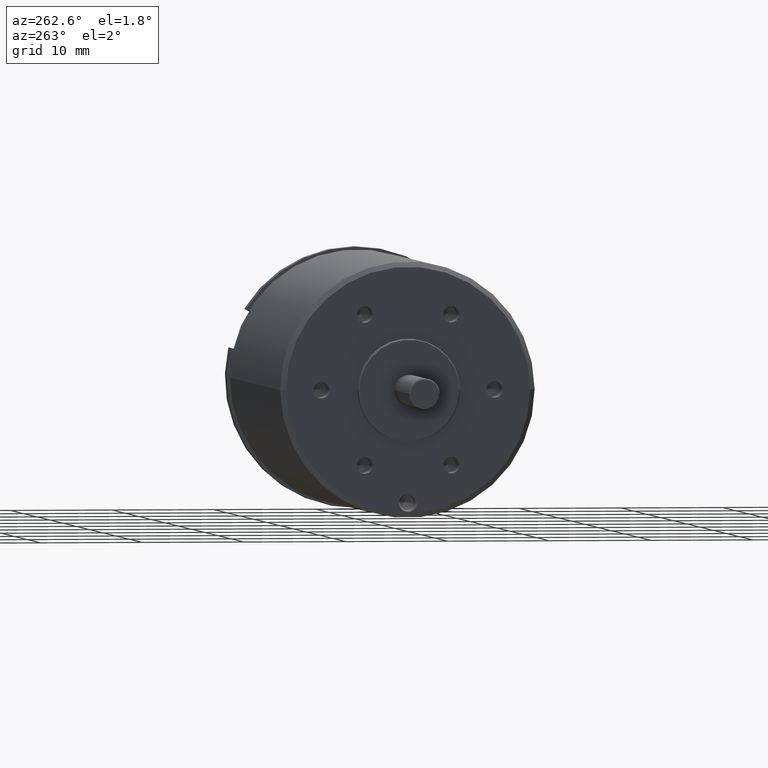
[diagram: clean part render]
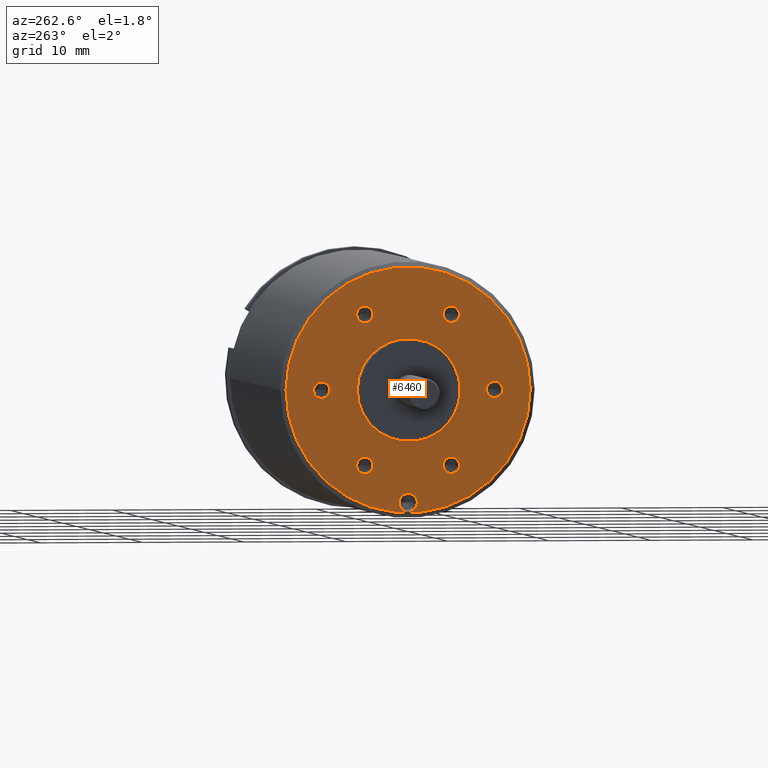
[diagram: same view with one face highlighted and labeled with its STEP entity id]
A machine part, auxiliary view. The second image highlights one B-rep face of the part: STEP entity #6460.
In plain terms, the highlighted planar face has unit normal (-1, 0, 0).
Its self-contained STEP definition (entity closure, byte-faithful):
#2199=CARTESIAN_POINT('',(0.E0,0.E0,0.E0));
#2200=DIRECTION('',(1.E0,0.E0,0.E0));
#2201=DIRECTION('',(0.E0,1.E0,0.E0));
#2202=AXIS2_PLACEMENT_3D('',#2199,#2200,#2201);
#2204=CARTESIAN_POINT('',(0.E0,0.E0,0.E0));
#2205=DIRECTION('',(-1.E0,0.E0,0.E0));
#2206=DIRECTION('',(0.E0,1.E0,0.E0));
#2207=AXIS2_PLACEMENT_3D('',#2204,#2205,#2206);
#2209=CARTESIAN_POINT('',(0.E0,0.E0,0.E0));
#2210=DIRECTION('',(1.E0,0.E0,0.E0));
#2211=DIRECTION('',(0.E0,-1.E0,0.E0));
#2212=AXIS2_PLACEMENT_3D('',#2209,#2210,#2211);
#2214=CARTESIAN_POINT('',(0.E0,0.E0,0.E0));
#2215=DIRECTION('',(1.E0,0.E0,0.E0));
#2216=DIRECTION('',(0.E0,1.E0,0.E0));
#2217=AXIS2_PLACEMENT_3D('',#2214,#2215,#2216);
#2219=CARTESIAN_POINT('',(0.E0,-8.5E0,0.E0));
#2220=DIRECTION('',(-1.E0,0.E0,0.E0));
#2221=DIRECTION('',(0.E0,1.E0,0.E0));
#2222=AXIS2_PLACEMENT_3D('',#2219,#2220,#2221);
#2224=CARTESIAN_POINT('',(0.E0,-8.5E0,0.E0));
#2225=DIRECTION('',(-1.E0,0.E0,0.E0));
#2226=DIRECTION('',(0.E0,-1.E0,0.E0));
#2227=AXIS2_PLACEMENT_3D('',#2224,#2225,#2226);
#2229=CARTESIAN_POINT('',(0.E0,-4.25E0,-7.361215932168E0));
#2230=DIRECTION('',(-1.E0,0.E0,0.E0));
#2231=DIRECTION('',(0.E0,5.E-1,8.660254037844E-1));
#2232=AXIS2_PLACEMENT_3D('',#2229,#2230,#2231);
#2234=CARTESIAN_POINT('',(0.E0,-4.25E0,-7.361215932168E0));
#2235=DIRECTION('',(-1.E0,0.E0,0.E0));
#2236=DIRECTION('',(0.E0,-5.E-1,-8.660254037844E-1));
#2237=AXIS2_PLACEMENT_3D('',#2234,#2235,#2236);
#2239=CARTESIAN_POINT('',(0.E0,4.25E0,-7.361215932168E0));
#2240=DIRECTION('',(-1.E0,0.E0,0.E0));
#2241=DIRECTION('',(0.E0,-5.E-1,8.660254037844E-1));
#2242=AXIS2_PLACEMENT_3D('',#2239,#2240,#2241);
#2244=CARTESIAN_POINT('',(0.E0,4.25E0,-7.361215932168E0));
#2245=DIRECTION('',(-1.E0,0.E0,0.E0));
#2246=DIRECTION('',(0.E0,5.E-1,-8.660254037844E-1));
#2247=AXIS2_PLACEMENT_3D('',#2244,#2245,#2246);
#2249=CARTESIAN_POINT('',(0.E0,8.5E0,0.E0));
#2250=DIRECTION('',(-1.E0,0.E0,0.E0));
#2251=DIRECTION('',(0.E0,-1.E0,0.E0));
#2252=AXIS2_PLACEMENT_3D('',#2249,#2250,#2251);
#2254=CARTESIAN_POINT('',(0.E0,8.5E0,0.E0));
#2255=DIRECTION('',(-1.E0,0.E0,0.E0));
#2256=DIRECTION('',(0.E0,1.E0,0.E0));
#2257=AXIS2_PLACEMENT_3D('',#2254,#2255,#2256);
#2259=CARTESIAN_POINT('',(0.E0,4.25E0,7.361215932168E0));
#2260=DIRECTION('',(-1.E0,0.E0,0.E0));
#2261=DIRECTION('',(0.E0,-5.E-1,-8.660254037844E-1));
#2262=AXIS2_PLACEMENT_3D('',#2259,#2260,#2261);
#2264=CARTESIAN_POINT('',(0.E0,4.25E0,7.361215932168E0));
#2265=DIRECTION('',(-1.E0,0.E0,0.E0));
#2266=DIRECTION('',(0.E0,5.E-1,8.660254037844E-1));
#2267=AXIS2_PLACEMENT_3D('',#2264,#2265,#2266);
#2269=CARTESIAN_POINT('',(0.E0,-4.25E0,7.361215932168E0));
#2270=DIRECTION('',(-1.E0,0.E0,0.E0));
#2271=DIRECTION('',(0.E0,5.E-1,-8.660254037844E-1));
#2272=AXIS2_PLACEMENT_3D('',#2269,#2270,#2271);
#2274=CARTESIAN_POINT('',(0.E0,-4.25E0,7.361215932168E0));
#2275=DIRECTION('',(-1.E0,0.E0,0.E0));
#2276=DIRECTION('',(0.E0,-5.E-1,8.660254037844E-1));
#2277=AXIS2_PLACEMENT_3D('',#2274,#2275,#2276);
#2279=CARTESIAN_POINT('',(0.E0,0.E0,-1.1E1));
#2280=DIRECTION('',(-1.E0,0.E0,0.E0));
#2281=DIRECTION('',(0.E0,1.E0,0.E0));
#2282=AXIS2_PLACEMENT_3D('',#2279,#2280,#2281);
#2284=CARTESIAN_POINT('',(0.E0,0.E0,-1.1E1));
#2285=DIRECTION('',(-1.E0,0.E0,0.E0));
#2286=DIRECTION('',(0.E0,-1.E0,0.E0));
#2287=AXIS2_PLACEMENT_3D('',#2284,#2285,#2286);
#3096=CARTESIAN_POINT('',(0.E0,1.2E1,0.E0));
#3098=VERTEX_POINT('',#3096);
#3100=CARTESIAN_POINT('',(0.E0,-1.2E1,0.E0));
#3102=VERTEX_POINT('',#3100);
#3217=CARTESIAN_POINT('',(0.E0,-5.E0,0.E0));
#3218=CARTESIAN_POINT('',(0.E0,5.E0,0.E0));
#3219=VERTEX_POINT('',#3217);
#3220=VERTEX_POINT('',#3218);
#3243=CARTESIAN_POINT('',(0.E0,-7.7E0,0.E0));
#3244=CARTESIAN_POINT('',(0.E0,-9.3E0,0.E0));
#3245=VERTEX_POINT('',#3243);
#3246=VERTEX_POINT('',#3244);
#3253=CARTESIAN_POINT('',(0.E0,-3.85E0,-6.668395609140E0));
#3254=CARTESIAN_POINT('',(0.E0,-4.65E0,-8.054036255195E0));
#3255=VERTEX_POINT('',#3253);
#3256=VERTEX_POINT('',#3254);
#3263=CARTESIAN_POINT('',(0.E0,3.85E0,-6.668395609140E0));
#3264=CARTESIAN_POINT('',(0.E0,4.65E0,-8.054036255195E0));
#3265=VERTEX_POINT('',#3263);
#3266=VERTEX_POINT('',#3264);
#3273=CARTESIAN_POINT('',(0.E0,7.7E0,0.E0));
#3274=CARTESIAN_POINT('',(0.E0,9.3E0,0.E0));
#3275=VERTEX_POINT('',#3273);
#3276=VERTEX_POINT('',#3274);
#3283=CARTESIAN_POINT('',(0.E0,3.85E0,6.668395609140E0));
#3284=CARTESIAN_POINT('',(0.E0,4.65E0,8.054036255195E0));
#3285=VERTEX_POINT('',#3283);
#3286=VERTEX_POINT('',#3284);
#3293=CARTESIAN_POINT('',(0.E0,-3.85E0,6.668395609140E0));
#3294=CARTESIAN_POINT('',(0.E0,-4.65E0,8.054036255195E0));
#3295=VERTEX_POINT('',#3293);
#3296=VERTEX_POINT('',#3294);
#3307=CARTESIAN_POINT('',(0.E0,9.E-1,-1.1E1));
#3308=CARTESIAN_POINT('',(0.E0,-9.E-1,-1.1E1));
#3309=VERTEX_POINT('',#3307);
#3310=VERTEX_POINT('',#3308);
#6403=CARTESIAN_POINT('',(0.E0,0.E0,0.E0));
#6404=DIRECTION('',(-1.E0,0.E0,0.E0));
#6405=DIRECTION('',(0.E0,1.E0,0.E0));
#6406=AXIS2_PLACEMENT_3D('',#6403,#6404,#6405);
#6407=PLANE('',#6406);
#6408=ORIENTED_EDGE('',*,*,#3336,.T.);
#6409=ORIENTED_EDGE('',*,*,#3318,.F.);
#6410=EDGE_LOOP('',(#6408,#6409));
#6411=FACE_OUTER_BOUND('',#6410,.F.);
#6413=ORIENTED_EDGE('',*,*,#6412,.F.);
#6415=ORIENTED_EDGE('',*,*,#6414,.F.);
#6416=EDGE_LOOP('',(#6413,#6415));
#6417=FACE_BOUND('',#6416,.F.);
#6419=ORIENTED_EDGE('',*,*,#6418,.T.);
#6421=ORIENTED_EDGE('',*,*,#6420,.T.);
#6422=EDGE_LOOP('',(#6419,#6421));
#6423=FACE_BOUND('',#6422,.F.);
#6425=ORIENTED_EDGE('',*,*,#6424,.T.);
#6427=ORIENTED_EDGE('',*,*,#6426,.T.);
#6428=EDGE_LOOP('',(#6425,#6427));
#6429=FACE_BOUND('',#6428,.F.);
#6431=ORIENTED_EDGE('',*,*,#6430,.T.);
#6433=ORIENTED_EDGE('',*,*,#6432,.T.);
#6434=EDGE_LOOP('',(#6431,#6433));
#6435=FACE_BOUND('',#6434,.F.);
#6437=ORIENTED_EDGE('',*,*,#6436,.T.);
#6439=ORIENTED_EDGE('',*,*,#6438,.T.);
#6440=EDGE_LOOP('',(#6437,#6439));
#6441=FACE_BOUND('',#6440,.F.);
#6443=ORIENTED_EDGE('',*,*,#6442,.T.);
#6445=ORIENTED_EDGE('',*,*,#6444,.T.);
#6446=EDGE_LOOP('',(#6443,#6445));
#6447=FACE_BOUND('',#6446,.F.);
#6449=ORIENTED_EDGE('',*,*,#6448,.T.);
#6451=ORIENTED_EDGE('',*,*,#6450,.T.);
#6452=EDGE_LOOP('',(#6449,#6451));
#6453=FACE_BOUND('',#6452,.F.);
#6455=ORIENTED_EDGE('',*,*,#6454,.T.);
#6457=ORIENTED_EDGE('',*,*,#6456,.T.);
#6458=EDGE_LOOP('',(#6455,#6457));
#6459=FACE_BOUND('',#6458,.F.);
#6460=ADVANCED_FACE('',(#6411,#6417,#6423,#6429,#6435,#6441,#6447,#6453,#6459),
#6407,.T.);
#2203=CIRCLE('',#2202,1.2E1);
#2208=CIRCLE('',#2207,1.2E1);
#2213=CIRCLE('',#2212,5.E0);
#2218=CIRCLE('',#2217,5.E0);
#2223=CIRCLE('',#2222,8.E-1);
#2228=CIRCLE('',#2227,8.E-1);
#2233=CIRCLE('',#2232,8.E-1);
#2238=CIRCLE('',#2237,8.E-1);
#2243=CIRCLE('',#2242,8.E-1);
#2248=CIRCLE('',#2247,8.E-1);
#2253=CIRCLE('',#2252,8.E-1);
#2258=CIRCLE('',#2257,8.E-1);
#2263=CIRCLE('',#2262,8.E-1);
#2268=CIRCLE('',#2267,8.E-1);
#2273=CIRCLE('',#2272,8.E-1);
#2278=CIRCLE('',#2277,8.E-1);
#2283=CIRCLE('',#2282,9.E-1);
#2288=CIRCLE('',#2287,9.E-1);
#3318=EDGE_CURVE('',#3098,#3102,#2208,.T.);
#3336=EDGE_CURVE('',#3098,#3102,#2203,.T.);
#6412=EDGE_CURVE('',#3219,#3220,#2213,.T.);
#6414=EDGE_CURVE('',#3220,#3219,#2218,.T.);
#6418=EDGE_CURVE('',#3245,#3246,#2223,.T.);
#6420=EDGE_CURVE('',#3246,#3245,#2228,.T.);
#6424=EDGE_CURVE('',#3255,#3256,#2233,.T.);
#6426=EDGE_CURVE('',#3256,#3255,#2238,.T.);
#6430=EDGE_CURVE('',#3265,#3266,#2243,.T.);
#6432=EDGE_CURVE('',#3266,#3265,#2248,.T.);
#6436=EDGE_CURVE('',#3275,#3276,#2253,.T.);
#6438=EDGE_CURVE('',#3276,#3275,#2258,.T.);
#6442=EDGE_CURVE('',#3285,#3286,#2263,.T.);
#6444=EDGE_CURVE('',#3286,#3285,#2268,.T.);
#6448=EDGE_CURVE('',#3295,#3296,#2273,.T.);
#6450=EDGE_CURVE('',#3296,#3295,#2278,.T.);
#6454=EDGE_CURVE('',#3309,#3310,#2283,.T.);
#6456=EDGE_CURVE('',#3310,#3309,#2288,.T.);